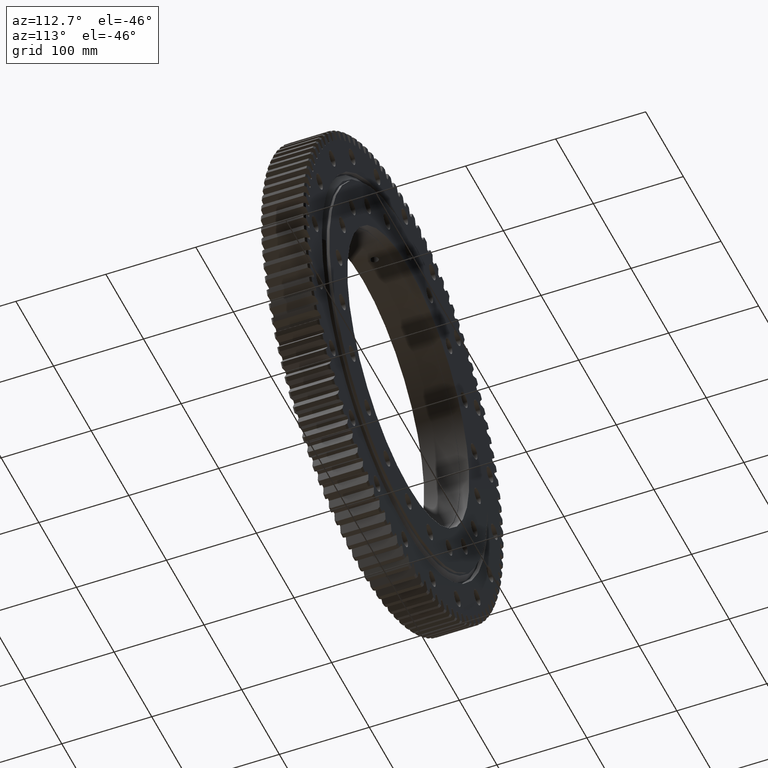
[diagram: clean part render]
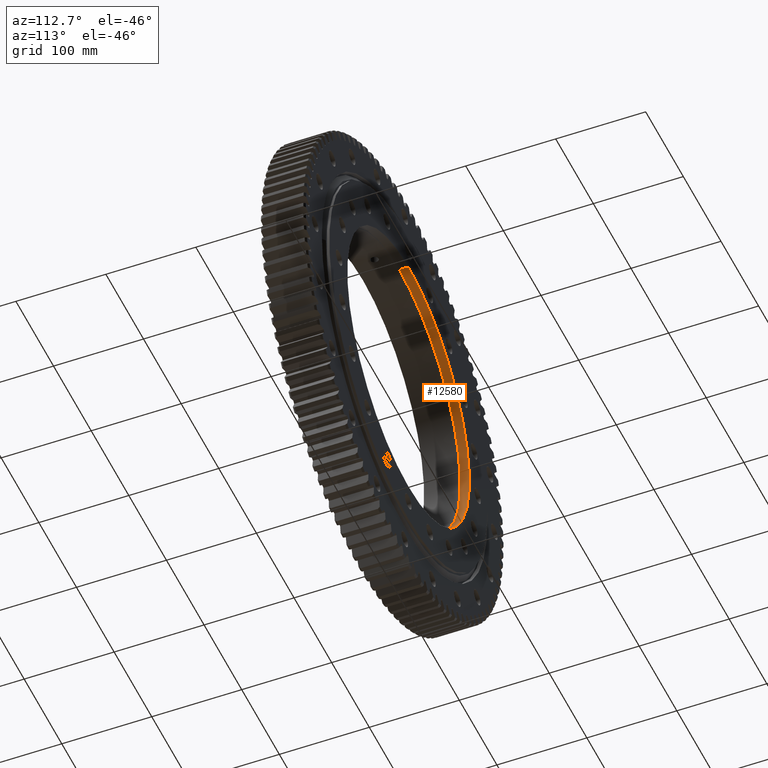
[diagram: same view with one face highlighted and labeled with its STEP entity id]
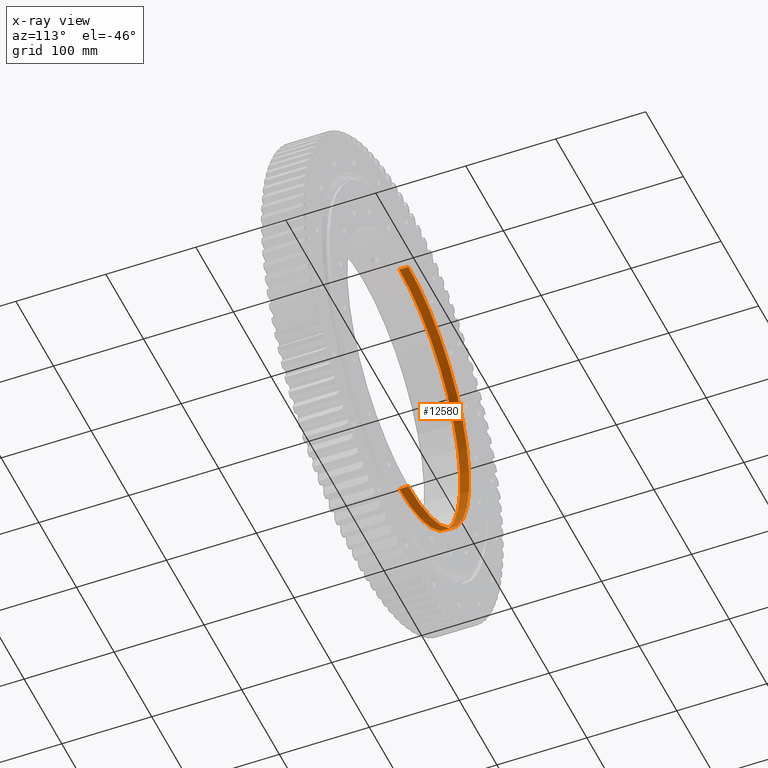
[diagram: x-ray of the same camera — body ghosted, the highlighted face saturated]
A machine part, auxiliary view. The second image highlights one B-rep face of the part: STEP entity #12580.
The next image is the same camera in x-ray: the body ghosted, the highlighted face saturated — about 0% of this face is hidden behind the body in this view.
In plain terms, the highlighted cylindrical surface (partial cylindrical patch) has radius 162 mm, axis along (-0, 1, -0).
Its self-contained STEP definition (entity closure, byte-faithful):
#671 = CARTESIAN_POINT ( 'NONE',  ( 0.0000000000000000000, 70.62343277129268400, 162.0000000000000000 ) ) ;
#1764 = AXIS2_PLACEMENT_3D ( 'NONE', #22823, #22736, #20775 ) ;
#2035 = AXIS2_PLACEMENT_3D ( 'NONE', #15727, #3454, #17778 ) ;
#2937 = ORIENTED_EDGE ( 'NONE', *, *, #5764, .F. ) ;
#3052 = CIRCLE ( 'NONE', #2035, 162.0000000000000000 ) ;
#3122 = EDGE_CURVE ( 'NONE', #15051, #23257, #22741, .T. ) ;
#3454 = DIRECTION ( 'NONE',  ( -0.0000000000000000000, 1.000000000000000000, -0.0000000000000000000 ) ) ;
#3887 = CARTESIAN_POINT ( 'NONE',  ( 1.983927814618712200E-014, 16.99999999999997500, -162.0000000000000000 ) ) ;
#4367 = DIRECTION ( 'NONE',  ( -0.0000000000000000000, 1.000000000000000000, -0.0000000000000000000 ) ) ;
#4538 = DIRECTION ( 'NONE',  ( 0.0000000000000000000, -1.000000000000000000, 2.727064569436389700E-017 ) ) ;
#5764 = EDGE_CURVE ( 'NONE', #7766, #7466, #11439, .T. ) ;
#6563 = CYLINDRICAL_SURFACE ( 'NONE', #1764, 162.0000000000000000 ) ;
#7466 = VERTEX_POINT ( 'NONE', #13615 ) ;
#7739 = ORIENTED_EDGE ( 'NONE', *, *, #8927, .F. ) ;
#7766 = VERTEX_POINT ( 'NONE', #18740 ) ;
#8927 = EDGE_CURVE ( 'NONE', #15051, #7766, #3052, .T. ) ;
#10212 = EDGE_CURVE ( 'NONE', #7466, #23257, #11973, .T. ) ;
#10808 = VECTOR ( 'NONE', #20802, 1000.000000000000000 ) ;
#11439 = LINE ( 'NONE', #671, #10808 ) ;
#11973 = CIRCLE ( 'NONE', #24724, 162.0000000000000000 ) ;
#12392 = EDGE_LOOP ( 'NONE', ( #7739, #22176, #21647, #2937 ) ) ;
#12572 = CARTESIAN_POINT ( 'NONE',  ( 1.983927814618712200E-014, 70.62343277129268400, -162.0000000000000000 ) ) ;
#12580 = ADVANCED_FACE ( 'NONE', ( #22919 ), #6563, .F. ) ;
#13425 = CARTESIAN_POINT ( 'NONE',  ( 1.983927814618712200E-014, 26.99999999999997900, -162.0000000000000000 ) ) ;
#13615 = CARTESIAN_POINT ( 'NONE',  ( 0.0000000000000000000, 26.99999999999998600, 162.0000000000000000 ) ) ;
#15051 = VERTEX_POINT ( 'NONE', #3887 ) ;
#15727 = CARTESIAN_POINT ( 'NONE',  ( 0.0000000000000000000, 16.99999999999997500, 0.0000000000000000000 ) ) ;
#16816 = CARTESIAN_POINT ( 'NONE',  ( 0.0000000000000000000, 26.99999999999998200, 0.0000000000000000000 ) ) ;
#17290 = VECTOR ( 'NONE', #4367, 1000.000000000000000 ) ;
#17778 = DIRECTION ( 'NONE',  ( 0.0000000000000000000, 0.0000000000000000000, 1.000000000000000000 ) ) ;
#18740 = CARTESIAN_POINT ( 'NONE',  ( 0.0000000000000000000, 16.99999999999997500, 162.0000000000000000 ) ) ;
#18862 = DIRECTION ( 'NONE',  ( 0.0000000000000000000, -2.141633920959021100E-017, -1.000000000000000000 ) ) ;
#20775 = DIRECTION ( 'NONE',  ( 0.0000000000000000000, 0.0000000000000000000, 1.000000000000000000 ) ) ;
#20802 = DIRECTION ( 'NONE',  ( -0.0000000000000000000, 1.000000000000000000, -0.0000000000000000000 ) ) ;
#21647 = ORIENTED_EDGE ( 'NONE', *, *, #10212, .F. ) ;
#22176 = ORIENTED_EDGE ( 'NONE', *, *, #3122, .T. ) ;
#22736 = DIRECTION ( 'NONE',  ( -0.0000000000000000000, 1.000000000000000000, -0.0000000000000000000 ) ) ;
#22741 = LINE ( 'NONE', #12572, #17290 ) ;
#22823 = CARTESIAN_POINT ( 'NONE',  ( 0.0000000000000000000, 70.62343277129268400, 0.0000000000000000000 ) ) ;
#22919 = FACE_OUTER_BOUND ( 'NONE', #12392, .T. ) ;
#23257 = VERTEX_POINT ( 'NONE', #13425 ) ;
#24724 = AXIS2_PLACEMENT_3D ( 'NONE', #16816, #4538, #18862 ) ;